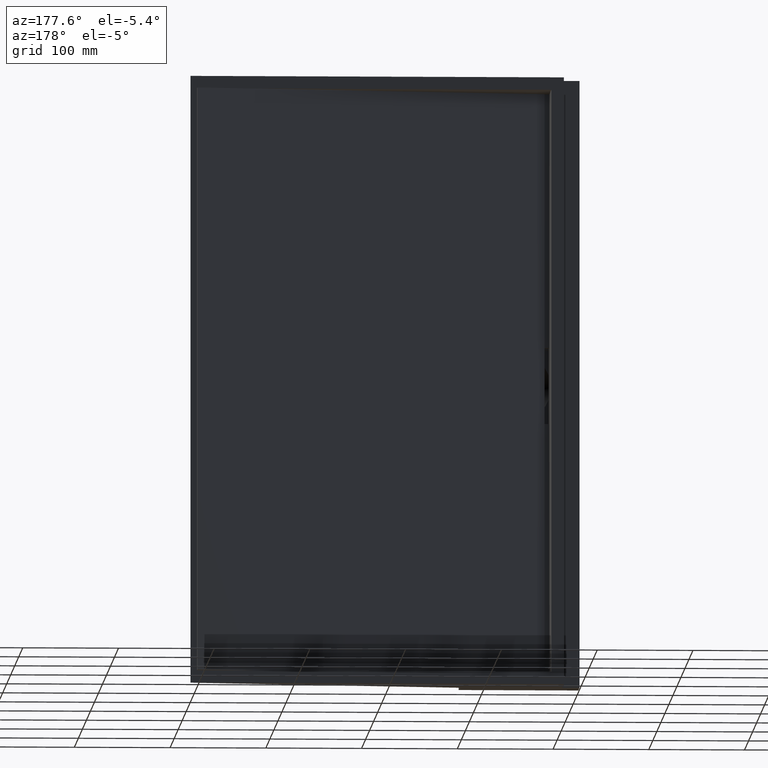
[diagram: clean part render]
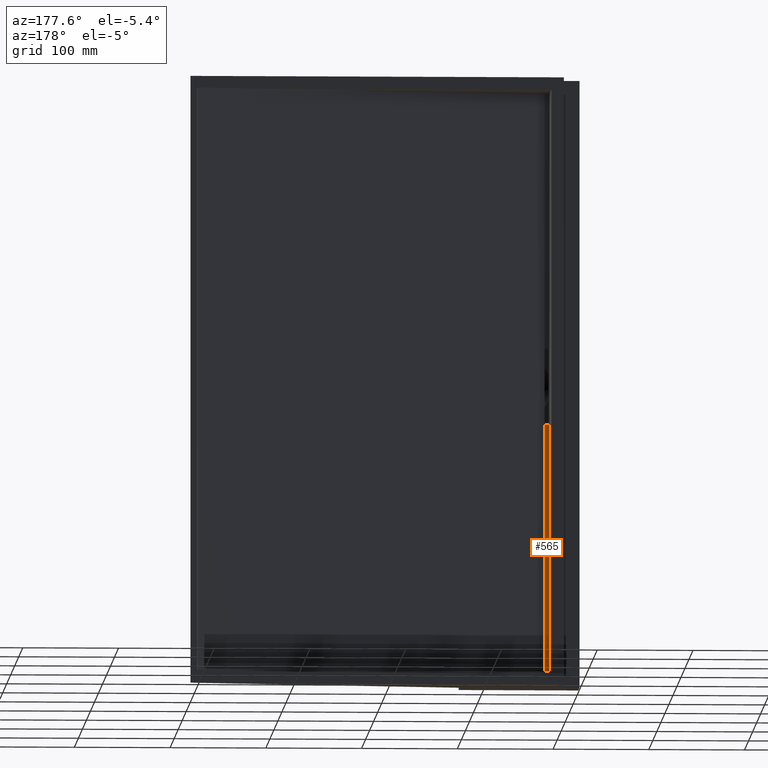
[diagram: same view with one face highlighted and labeled with its STEP entity id]
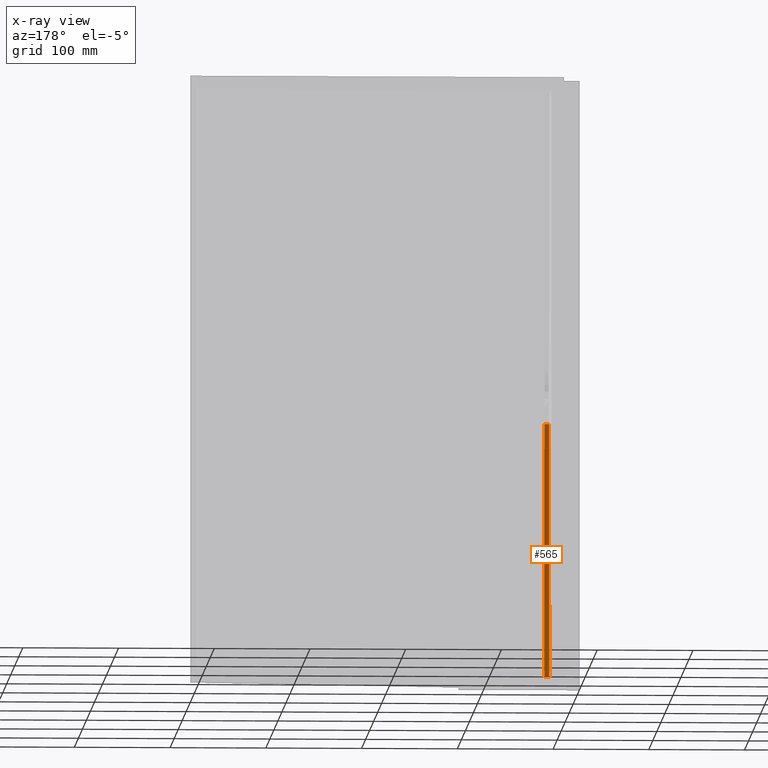
[diagram: x-ray of the same camera — body ghosted, the highlighted face saturated]
A machine part, auxiliary view. The second image highlights one B-rep face of the part: STEP entity #565.
The next image is the same camera in x-ray: the body ghosted, the highlighted face saturated — about 0% of this face is hidden behind the body in this view.
In plain terms, the highlighted planar face has unit normal (0, -0.9998, -0.0207).
Its self-contained STEP definition (entity closure, byte-faithful):
#4 = DIRECTION ( 'NONE',  ( 0.0000000000000000000, -0.02074972760189479700, 0.9997847012254425000 ) ) ;
#50 = CARTESIAN_POINT ( 'NONE',  ( 210.6021135167758300, -53.50000000000002100, -305.0000000000000000 ) ) ;
#64 = ORIENTED_EDGE ( 'NONE', *, *, #2646, .F. ) ;
#99 = VERTEX_POINT ( 'NONE', #809 ) ;
#205 = LINE ( 'NONE', #861, #1346 ) ;
#242 = CARTESIAN_POINT ( 'NONE',  ( -68.11638246079654400, -53.50000000000002100, -305.0000000000000000 ) ) ;
#292 = ORIENTED_EDGE ( 'NONE', *, *, #429, .T. ) ;
#359 = VECTOR ( 'NONE', #4, 999.9999999999998900 ) ;
#429 = EDGE_CURVE ( 'NONE', #769, #2414, #706, .T. ) ;
#445 = VECTOR ( 'NONE', #2457, 1000.000000000000000 ) ;
#512 = ORIENTED_EDGE ( 'NONE', *, *, #2466, .F. ) ;
#565 = ADVANCED_FACE ( 'NONE', ( #1543 ), #1924, .F. ) ;
#569 = LINE ( 'NONE', #2468, #445 ) ;
#664 = VERTEX_POINT ( 'NONE', #2483 ) ;
#706 = LINE ( 'NONE', #1838, #918 ) ;
#769 = VERTEX_POINT ( 'NONE', #2555 ) ;
#809 = CARTESIAN_POINT ( 'NONE',  ( -68.11638246079654400, -53.50000000000002100, -305.0000000000000000 ) ) ;
#861 = CARTESIAN_POINT ( 'NONE',  ( 210.6021135167758300, -53.50000000000002100, -305.0000000000000000 ) ) ;
#918 = VECTOR ( 'NONE', #2269, 1000.000000000000100 ) ;
#1054 = ORIENTED_EDGE ( 'NONE', *, *, #2864, .T. ) ;
#1311 = DIRECTION ( 'NONE',  ( -1.000000000000000000, -0.0000000000000000000, -0.0000000000000000000 ) ) ;
#1346 = VECTOR ( 'NONE', #1311, 1000.000000000000000 ) ;
#1487 = DIRECTION ( 'NONE',  ( 0.0000000000000000000, 0.02074972760189479300, -0.9997847012254423800 ) ) ;
#1543 = FACE_OUTER_BOUND ( 'NONE', #2405, .T. ) ;
#1587 = AXIS2_PLACEMENT_3D ( 'NONE', #50, #2779, #1487 ) ;
#1838 = CARTESIAN_POINT ( 'NONE',  ( -73.11638246079655800, -53.50000000000002100, -305.0000000000000000 ) ) ;
#1924 = PLANE ( 'NONE',  #1587 ) ;
#2153 = LINE ( 'NONE', #242, #359 ) ;
#2269 = DIRECTION ( 'NONE',  ( 0.0000000000000000000, -0.02074972760189479000, 0.9997847012254423800 ) ) ;
#2379 = CARTESIAN_POINT ( 'NONE',  ( -73.11638246079655800, -58.99986192803548600, -40.00000000000000700 ) ) ;
#2405 = EDGE_LOOP ( 'NONE', ( #64, #1054, #292, #512 ) ) ;
#2414 = VERTEX_POINT ( 'NONE', #2379 ) ;
#2457 = DIRECTION ( 'NONE',  ( -1.000000000000000000, -0.0000000000000000000, -0.0000000000000000000 ) ) ;
#2466 = EDGE_CURVE ( 'NONE', #664, #2414, #569, .T. ) ;
#2468 = CARTESIAN_POINT ( 'NONE',  ( 210.6021135167758300, -58.99986192803548600, -40.00000000000000700 ) ) ;
#2483 = CARTESIAN_POINT ( 'NONE',  ( -68.11638246079654400, -58.99986192803548600, -40.00000000000000700 ) ) ;
#2555 = CARTESIAN_POINT ( 'NONE',  ( -73.11638246079655800, -53.50000000000002100, -305.0000000000000000 ) ) ;
#2646 = EDGE_CURVE ( 'NONE', #99, #664, #2153, .T. ) ;
#2779 = DIRECTION ( 'NONE',  ( 0.0000000000000000000, -0.9997847012254425000, -0.02074972760189479700 ) ) ;
#2864 = EDGE_CURVE ( 'NONE', #99, #769, #205, .T. ) ;